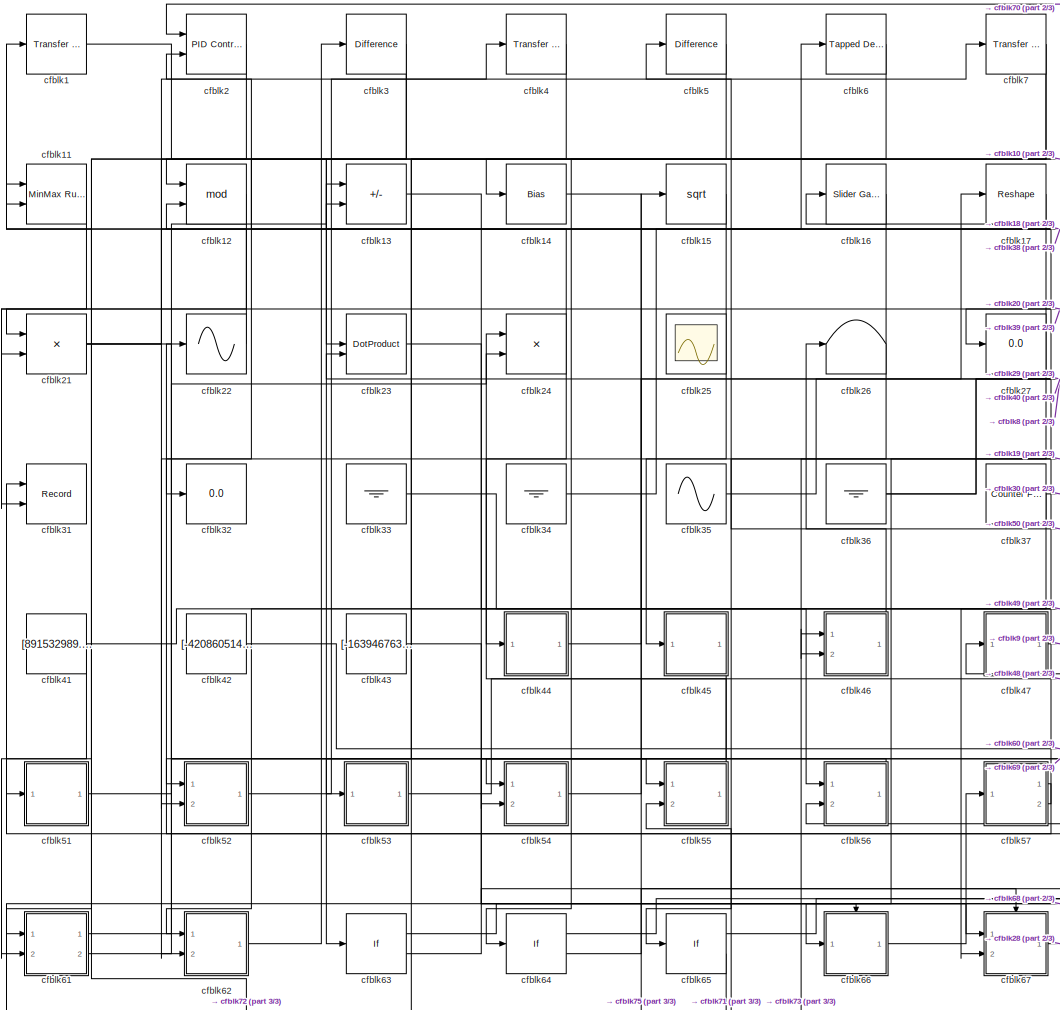
[diagram: root canvas - part 1/3, center side, full height]
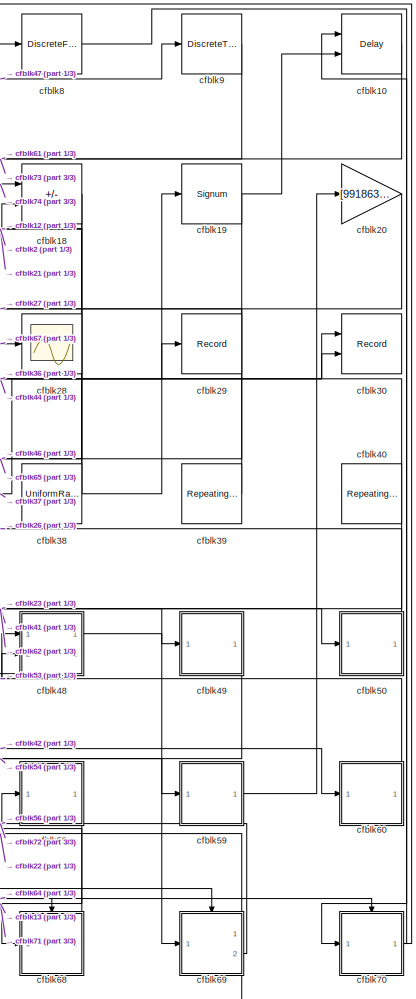
[diagram: root canvas - part 2/3, right side, full height]
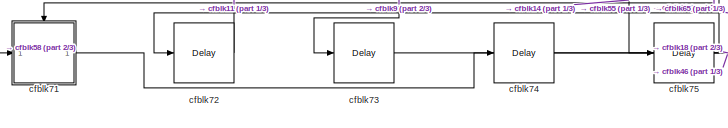
[diagram: root canvas - part 3/3, bottom left region]
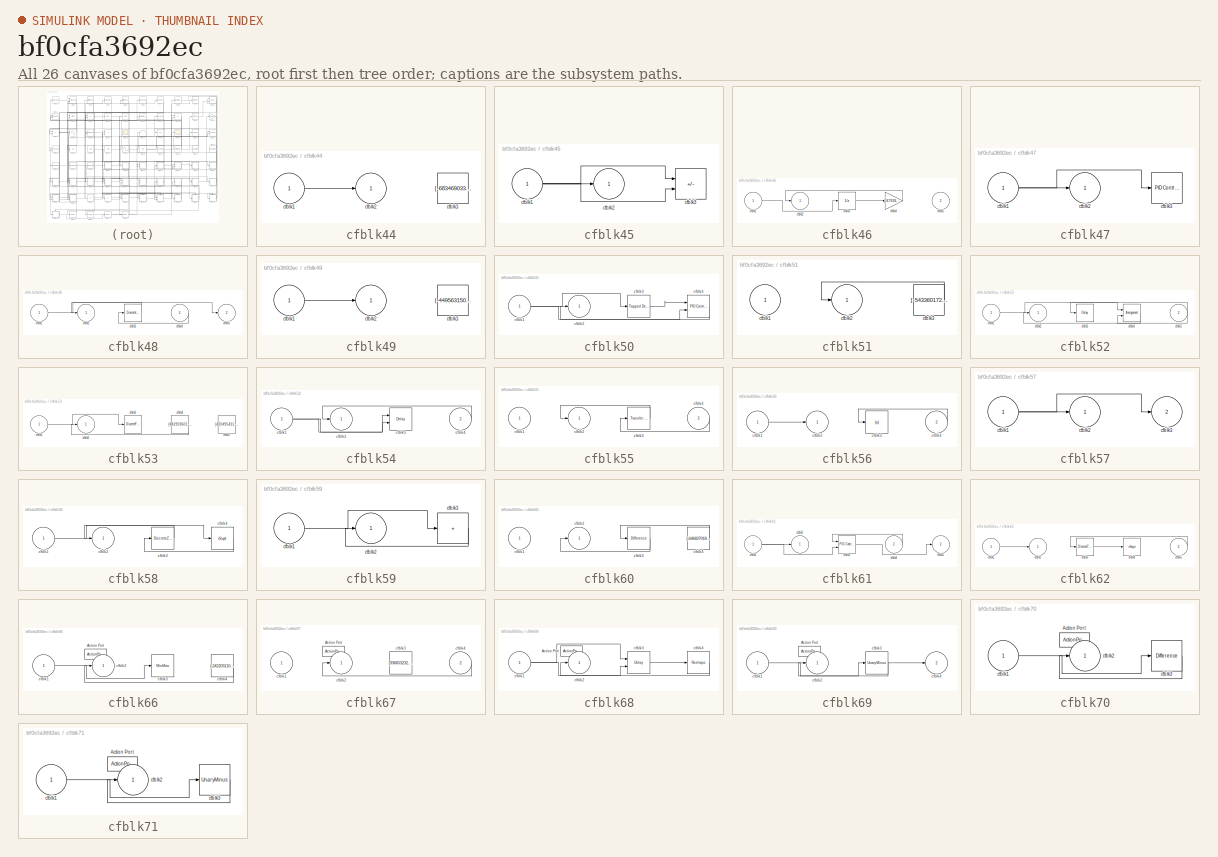
[diagram: thumbnail index - all 26 canvases of the model, root first then tree order]
MODEL slx_bf0cfa3692ec
KIND model
CONFIG AbsTol = auto
CONFIG EnableMultiTasking = off
CONFIG FixedStep = auto
CONFIG MaxStep = auto
CONFIG MinStep = auto
CONFIG RelTol = 1e-3
CONFIG SampleTimeConstraint = Unconstrained
CONFIG SolverName = VariableStepAuto
CONFIG StartTime = 0.0
CONFIG StopTime = 10.0
BLOCK [Reference] cfblk1  REF=simulink/Discrete/Transfer Fcn
Lead or Lag
  Ports = [1, 1]
  SourceBlock = simulink/Discrete/Transfer Fcn\nLead or Lag
  SourceProductBaseCode = SL
  SourceType = Lead or Lag Compensator
BLOCK [Delay] cfblk10
  DelayLengthSource = Input port
  InputPortMap = u0,p1
  Ports = [2, 1]
  SampleTime = 1
BLOCK [Reference] cfblk11  REF=simulink/Math
Operations/MinMax
Running
Resettable
  Ports = [2, 1]
  SourceBlock = simulink/Math\nOperations/MinMax\nRunning\nResettable
  SourceProductBaseCode = SL
  SourceType = MinMax Running Resettable
BLOCK [Math] cfblk12
  Operator = mod
  Ports = [2, 1]
BLOCK [Sum] cfblk13
  IconShape = rectangular
  Inputs = +-
  Ports = [2, 1]
BLOCK [Bias] cfblk14
  Bias = [572831672.233347]
  SaturateOnIntegerOverflow = off
BLOCK [Sqrt] cfblk15
BLOCK [Reference] cfblk16  REF=simulink/Math
Operations/Slider
Gain
  Ports = [1, 1]
  SourceBlock = simulink/Math\nOperations/Slider\nGain
  SourceProductBaseCode = SL
  SourceType = Slider Gain
BLOCK [Reshape] cfblk17
  Ports = [1, 1]
BLOCK [Sum] cfblk18
  IconShape = rectangular
  Inputs = +-
  Ports = [2, 1]
BLOCK [Signum] cfblk19
BLOCK [Reference] cfblk2  REF=slpidlib/PID Controller (2DOF)
  Ports = [2, 1]
  SourceBlock = slpidlib/PID Controller (2DOF)
  SourceProductBaseCode = SL
  SourceType = PID 2dof
BLOCK [Gain] cfblk20
  Gain = [991863440.169261]
BLOCK [Product] cfblk21
  Ports = [2, 1]
BLOCK [Sin] cfblk22
  Ports = [1, 1]
  SampleTime = 0
  TimeSource = Use external signal
BLOCK [DotProduct] cfblk23
  OutDataTypeStr = Inherit: Inherit via internal rule
BLOCK [Product] cfblk24
  Ports = [2, 1]
BLOCK [Scope] cfblk25
  Floating = on
  NumInputPorts = 1
  Ports = []
BLOCK [Terminator] cfblk26
BLOCK [Display] cfblk27
  Decimation = 1
  Ports = [1]
BLOCK [Scope] cfblk28
  Floating = off
  NumInputPorts = 1
  Ports = [1]
BLOCK [Record] cfblk29
  FileSettingsInternal = {"entries":[{"content":{"excelSettings":{"content":{},"type":"Streamout.ExcelSettings"}},"type":"Streamout.FileSettingStorage","uuid":"ba94f7bc-c571-4684-873e-198d343eb330"}],"packageUris":["http://schema.mathworks.com/mf0/streamout_blocks/R2020a"],"version":"1.0"}
  Ports = [1]
  SignalsInternal = {"entries":[{"content":{"signals":[{"content":{"blockPath":["sampleModel207/cfblk29"],"channel":[],"dimensions":[1],"domain":"sampleModel207/cfblk29","lineColor":"#0072bd","plots":[1],"port":1,"sid":[""],"signalID":7938,"signalName":"cfblk44"},"type":"RecordBlkView.Signal","uuid":"a03984d2-9a4a-4e1d-9b9e-9f81ae70439a"}]},"type":"RecordBlkView.InputSignals","uuid":"4d9cae81-2804-4434-b520-f1778a45d...<+97ch>
  VisualizationBindings = {"sparklinesplugin":{"info":[{"bindingParametersList":[],"subplotID":1}]}}
BLOCK [Reference] cfblk3  REF=simulink/Discrete/Difference
  Ports = [1, 1]
  SourceBlock = simulink/Discrete/Difference
  SourceProductBaseCode = SL
  SourceType = Difference
BLOCK [Record] cfblk30
  CompatibilityTag = XY
  FileSettingsInternal = {"entries":[{"content":{"excelSettings":{"content":{},"type":"Streamout.ExcelSettings"}},"type":"Streamout.FileSettingStorage","uuid":"02e6b58a-44ef-4f01-ae17-fed776587134"}],"packageUris":["http://schema.mathworks.com/mf0/streamout_blocks/R2020a"],"version":"1.0"}
  Layout = [1 1]
  Ports = [2]
  SignalsInternal = {"entries":[{"content":{"signals":[{"content":{"blockPath":["sampleModel207/cfblk30"],"channel":[],"dimensions":[1],"domain":"sampleModel207/cfblk30","lineColor":"#a2142f","plots":[1],"port":1,"sid":[""],"signalID":7944,"signalName":"cfblk37"},"type":"RecordBlkView.Signal","uuid":"f7eabd2b-9528-48de-bf59-b42dd2c527a0"},{"content":{"blockPath":["sampleModel207/cfblk30"],"channel":[],"dimensions":[1...<+383ch>
  VisualizationBindings = {"xyplotplugin":{"info":[{"series":[{"bindingParametersList":[{"parameter":"X-Axis","signalID":7944,"signalName":"cfblk37"},{"parameter":"Y-Axis","signalID":7956,"signalName":"cfblk36"}],"seriesID":54449}],"subplotID":1}]}}
BLOCK [Record] cfblk31
  CompatibilityTag = XY
  FileSettingsInternal = {"entries":[{"content":{"excelSettings":{"content":{},"type":"Streamout.ExcelSettings"}},"type":"Streamout.FileSettingStorage","uuid":"e6345b7f-2f4a-4e43-9378-549003ff2ab0"}],"packageUris":["http://schema.mathworks.com/mf0/streamout_blocks/R2020a"],"version":"1.0"}
  Layout = [1 1]
  Ports = [2]
  SignalsInternal = {"entries":[{"content":{"signals":[{"content":{"blockPath":["sampleModel207/cfblk31"],"channel":[],"dimensions":[1],"domain":"sampleModel207/cfblk31","lineColor":"#a2142f","plots":[1],"port":1,"sid":[""],"signalID":7948,"signalName":"cfblk57:1"},"type":"RecordBlkView.Signal","uuid":"d2f01f7a-bf83-4770-97ea-3c4744defc63"},{"content":{"blockPath":["sampleModel207/cfblk31"],"channel":[],"dimensions":...<+385ch>
  VisualizationBindings = {"xyplotplugin":{"info":[{"series":[{"bindingParametersList":[{"parameter":"X-Axis","signalID":7948,"signalName":"cfblk57:1"},{"parameter":"Y-Axis","signalID":7952,"signalName":"cfblk12"}],"seriesID":5543}],"subplotID":1}]}}
BLOCK [Display] cfblk32
  Decimation = 1
  Ports = [1]
BLOCK [Ground] cfblk33
BLOCK [Ground] cfblk34
BLOCK [Sin] cfblk35
  Amplitude = [-725514772.832782]
  Bias = [-219809830.978912]
  Ports = [0, 1]
  SampleTime = 0
BLOCK [Ground] cfblk36
BLOCK [Reference] cfblk37  REF=simulink/Sources/Counter
Free-Running
  Ports = [0, 1]
  SourceBlock = simulink/Sources/Counter\nFree-Running
  SourceProductBaseCode = SL
  SourceType = Counter Free-Running
BLOCK [UniformRandomNumber] cfblk38
  Maximum = [3449121833.114349]
  Minimum = [-7059416998.347307]
  SampleTime = 0.1
  Seed = [71620830.000000]
BLOCK [Reference] cfblk39  REF=simulink/Sources/Repeating
Sequence
Stair
  Ports = [0, 1]
  SourceBlock = simulink/Sources/Repeating\nSequence\nStair
  SourceProductBaseCode = SL
  SourceType = Repeating Sequence Stair
BLOCK [Reference] cfblk4  REF=simulink/Discrete/Transfer Fcn
First Order
  Ports = [1, 1]
  SourceBlock = simulink/Discrete/Transfer Fcn\nFirst Order
  SourceProductBaseCode = SL
  SourceType = First Order Transfer Fcn
BLOCK [Reference] cfblk40  REF=simulink/Sources/Repeating
Sequence
Interpolated
  Ports = [0, 1]
  SourceBlock = simulink/Sources/Repeating\nSequence\nInterpolated
  SourceProductBaseCode = SL
  SourceType = Repeating Sequence Interpolated
BLOCK [Constant] cfblk41
  SampleTime = 1
  Value = [891532989.581310]
BLOCK [Constant] cfblk42
  SampleTime = 1
  Value = [-420860514.653842]
BLOCK [Constant] cfblk43
  SampleTime = 1
  Value = [-163946763.960982]
BLOCK [SubSystem] cfblk44
  Ports = [1, 1]
  RequestExecContextInheritance = off
BLOCK [Inport] cfblk44/cfblk1
BLOCK [Outport] cfblk44/cfblk2
BLOCK [Constant] cfblk44/cfblk3
  SampleTime = 1
  Value = [-683469033.987010]
BLOCK [SubSystem] cfblk45
  Ports = [1, 1]
  RequestExecContextInheritance = off
BLOCK [Inport] cfblk45/cfblk1
BLOCK [Outport] cfblk45/cfblk2
BLOCK [Sum] cfblk45/cfblk3
  IconShape = rectangular
  Inputs = +-
  Ports = [2, 1]
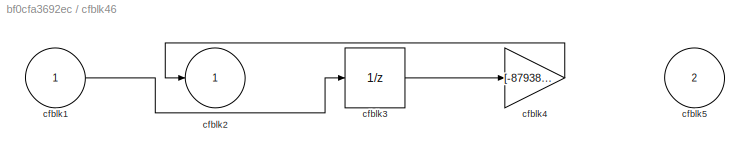
BLOCK [SubSystem] cfblk46
  Ports = [2, 1]
  RequestExecContextInheritance = off
BLOCK [Inport] cfblk46/cfblk1
BLOCK [Outport] cfblk46/cfblk2
BLOCK [UnitDelay] cfblk46/cfblk3
  HasFrameUpgradeWarning = on
BLOCK [Gain] cfblk46/cfblk4
  Gain = [-879380096.780010]
BLOCK [Inport] cfblk46/cfblk5
  Port = 2
BLOCK [SubSystem] cfblk47
  Ports = [1, 1]
  RequestExecContextInheritance = off
BLOCK [Inport] cfblk47/cfblk1
BLOCK [Outport] cfblk47/cfblk2
BLOCK [Reference] cfblk47/cfblk3  REF=slpidlib/PID Controller
  Ports = [1, 1]
  SourceBlock = slpidlib/PID Controller
  SourceProductBaseCode = SL
  SourceType = PID 1dof
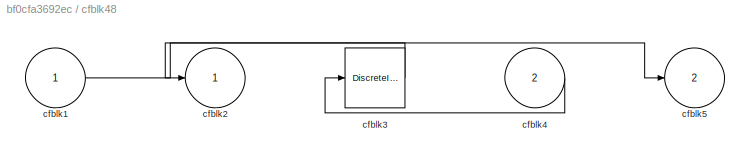
BLOCK [SubSystem] cfblk48
  Ports = [2, 2]
  RequestExecContextInheritance = off
BLOCK [Inport] cfblk48/cfblk1
BLOCK [Outport] cfblk48/cfblk2
BLOCK [DiscreteIntegrator] cfblk48/cfblk3
  ICPrevOutput = DiscIntNeverNeededParam
  ICPrevScaledInput = DiscIntNeverNeededParam
  InitialConditionSetting = Auto
  Ports = [1, 1]
BLOCK [Inport] cfblk48/cfblk4
  Port = 2
BLOCK [Outport] cfblk48/cfblk5
  Port = 2
BLOCK [SubSystem] cfblk49
  Ports = [1, 1]
  RequestExecContextInheritance = off
BLOCK [Inport] cfblk49/cfblk1
BLOCK [Outport] cfblk49/cfblk2
BLOCK [Constant] cfblk49/cfblk3
  SampleTime = 1
  Value = [-449563150.986198]
BLOCK [Reference] cfblk5  REF=simulink/Discrete/Difference
  Ports = [1, 1]
  SourceBlock = simulink/Discrete/Difference
  SourceProductBaseCode = SL
  SourceType = Difference
BLOCK [SubSystem] cfblk50
  Ports = [1, 1]
  RequestExecContextInheritance = off
BLOCK [Inport] cfblk50/cfblk1
BLOCK [Outport] cfblk50/cfblk2
BLOCK [Reference] cfblk50/cfblk3  REF=simulink/Discrete/Tapped Delay
  Ports = [1, 1]
  SourceBlock = simulink/Discrete/Tapped Delay
  SourceProductBaseCode = SL
  SourceType = Tapped Delay Line
BLOCK [Reference] cfblk50/cfblk4  REF=slpidlib/PID Controller (2DOF)
  Ports = [2, 1]
  SourceBlock = slpidlib/PID Controller (2DOF)
  SourceProductBaseCode = SL
  SourceType = PID 2dof
BLOCK [SubSystem] cfblk51
  Ports = [1, 1]
  RequestExecContextInheritance = off
BLOCK [Inport] cfblk51/cfblk1
BLOCK [Outport] cfblk51/cfblk2
BLOCK [Constant] cfblk51/cfblk3
  SampleTime = 1
  Value = [-543360172.892169]
BLOCK [SubSystem] cfblk52
  Ports = [2, 1]
  RequestExecContextInheritance = off
BLOCK [Inport] cfblk52/cfblk1
BLOCK [Outport] cfblk52/cfblk2
BLOCK [Delay] cfblk52/cfblk3
  InputPortMap = u0
  Ports = [1, 1]
  SampleTime = 1
BLOCK [Assignment] cfblk52/cfblk4
  DiagnosticForDimensions = Warning
  IndexOptions = Index vector (dialog)
  Indices = 1
  OutputSizes = 1
  Ports = [2, 1]
BLOCK [Inport] cfblk52/cfblk5
  Port = 2
BLOCK [SubSystem] cfblk53
  Ports = [1, 1]
  RequestExecContextInheritance = off
BLOCK [Inport] cfblk53/cfblk1
BLOCK [Outport] cfblk53/cfblk2
BLOCK [DiscreteFir] cfblk53/cfblk3
  InputPortMap = u0
  OutputPortMap = o0
  Ports = [1, 1]
  SampleTime = 1
BLOCK [Constant] cfblk53/cfblk4
  SampleTime = 1
  Value = [442959601.502982]
BLOCK [Constant] cfblk53/cfblk5
  SampleTime = 1
  Value = [420495431.017328]
BLOCK [SubSystem] cfblk54
  Ports = [2, 1]
  RequestExecContextInheritance = off
BLOCK [Inport] cfblk54/cfblk1
BLOCK [Outport] cfblk54/cfblk2
BLOCK [Delay] cfblk54/cfblk3
  DelayLengthSource = Input port
  InputPortMap = u0,p1
  Ports = [2, 1]
  SampleTime = 1
BLOCK [Inport] cfblk54/cfblk4
  Port = 2
BLOCK [SubSystem] cfblk55
  Ports = [2, 1]
  RequestExecContextInheritance = off
BLOCK [Inport] cfblk55/cfblk1
BLOCK [Outport] cfblk55/cfblk2
BLOCK [Reference] cfblk55/cfblk3  REF=simulink/Discrete/Transfer Fcn
Lead or Lag
  Ports = [1, 1]
  SourceBlock = simulink/Discrete/Transfer Fcn\nLead or Lag
  SourceProductBaseCode = SL
  SourceType = Lead or Lag Compensator
BLOCK [Inport] cfblk55/cfblk4
  Port = 2
BLOCK [SubSystem] cfblk56
  Ports = [2, 1]
  RequestExecContextInheritance = off
BLOCK [Inport] cfblk56/cfblk1
BLOCK [Outport] cfblk56/cfblk2
BLOCK [Abs] cfblk56/cfblk3
  SaturateOnIntegerOverflow = off
BLOCK [Inport] cfblk56/cfblk4
  Port = 2
BLOCK [SubSystem] cfblk57
  Ports = [1, 2]
  RequestExecContextInheritance = off
BLOCK [Inport] cfblk57/cfblk1
BLOCK [Outport] cfblk57/cfblk2
BLOCK [Outport] cfblk57/cfblk3
  Port = 2
BLOCK [SubSystem] cfblk58
  Ports = [1, 1]
  RequestExecContextInheritance = off
BLOCK [Inport] cfblk58/cfblk1
BLOCK [Outport] cfblk58/cfblk2
BLOCK [DiscreteZeroPole] cfblk58/cfblk3
  Gain = 1
  Poles = [0 0.5]
BLOCK [Sqrt] cfblk58/cfblk4
  AlgorithmType = Newton-Raphson
  Operator = rSqrt
BLOCK [SubSystem] cfblk59
  Ports = [1, 1]
  RequestExecContextInheritance = off
BLOCK [Inport] cfblk59/cfblk1
BLOCK [Outport] cfblk59/cfblk2
BLOCK [Sum] cfblk59/cfblk3
  IconShape = rectangular
  Inputs = +
  Ports = [1, 1]
BLOCK [Reference] cfblk6  REF=simulink/Discrete/Tapped Delay
  Ports = [1, 1]
  SourceBlock = simulink/Discrete/Tapped Delay
  SourceProductBaseCode = SL
  SourceType = Tapped Delay Line
BLOCK [SubSystem] cfblk60
  Ports = [1, 1]
  RequestExecContextInheritance = off
BLOCK [Inport] cfblk60/cfblk1
BLOCK [Outport] cfblk60/cfblk2
BLOCK [Reference] cfblk60/cfblk3  REF=simulink/Discrete/Difference
  Ports = [1, 1]
  SourceBlock = simulink/Discrete/Difference
  SourceProductBaseCode = SL
  SourceType = Difference
BLOCK [Constant] cfblk60/cfblk4
  SampleTime = 1
  Value = [-646837018.335124]
BLOCK [SubSystem] cfblk61
  Ports = [2, 2]
  RequestExecContextInheritance = off
BLOCK [Inport] cfblk61/cfblk1
BLOCK [Outport] cfblk61/cfblk2
BLOCK [Reference] cfblk61/cfblk3  REF=slpidlib/PID Controller (2DOF)
  Ports = [2, 1]
  SourceBlock = slpidlib/PID Controller (2DOF)
  SourceProductBaseCode = SL
  SourceType = PID 2dof
BLOCK [Inport] cfblk61/cfblk4
  Port = 2
BLOCK [Outport] cfblk61/cfblk5
  Port = 2
BLOCK [SubSystem] cfblk62
  Ports = [2, 1]
  RequestExecContextInheritance = off
BLOCK [Inport] cfblk62/cfblk1
BLOCK [Outport] cfblk62/cfblk2
BLOCK [DiscreteTransferFcn] cfblk62/cfblk3
  InputPortMap = u0
  Ports = [1, 1]
  SampleTime = 1
BLOCK [Sqrt] cfblk62/cfblk4
  AlgorithmType = Newton-Raphson
  Operator = rSqrt
BLOCK [Inport] cfblk62/cfblk5
  Port = 2
BLOCK [If] cfblk63
  IfExpression = u1 >= 0
  Ports = [1, 2]
  SampleTime = 1
BLOCK [If] cfblk64
  IfExpression = u1 >= 0
  Ports = [1, 2]
  SampleTime = 1
BLOCK [If] cfblk65
  IfExpression = u1 >= 0
  Ports = [1, 2]
  SampleTime = 1
BLOCK [SubSystem] cfblk66
  Ports = [1, 1, 0, 0, 0, 0, 0, 1]
  RequestExecContextInheritance = off
  TreatAsAtomicUnit = on
BLOCK [ActionPort] cfblk66/Action Port
  ActionPortLabel = if(u1 >= 0)
BLOCK [Inport] cfblk66/cfblk1
BLOCK [Outport] cfblk66/cfblk2
BLOCK [MinMax] cfblk66/cfblk3
  Ports = [1, 1]
BLOCK [Constant] cfblk66/cfblk4
  SampleTime = 1
  Value = [-242203110.533549]
BLOCK [SubSystem] cfblk67
  Ports = [2, 1, 0, 0, 0, 0, 0, 1]
  RequestExecContextInheritance = off
  TreatAsAtomicUnit = on
BLOCK [ActionPort] cfblk67/Action Port
  ActionPortLabel = else
BLOCK [Inport] cfblk67/cfblk1
BLOCK [Outport] cfblk67/cfblk2
BLOCK [Constant] cfblk67/cfblk3
  SampleTime = 1
  Value = [336653232.191756]
BLOCK [Inport] cfblk67/cfblk4
  Port = 2
BLOCK [SubSystem] cfblk68
  Ports = [1, 1, 0, 0, 0, 0, 0, 1]
  RequestExecContextInheritance = off
  TreatAsAtomicUnit = on
BLOCK [ActionPort] cfblk68/Action Port
  ActionPortLabel = if(u1 >= 0)
BLOCK [Inport] cfblk68/cfblk1
BLOCK [Outport] cfblk68/cfblk2
BLOCK [Delay] cfblk68/cfblk3
  InputPortMap = u0,e6
  Ports = [2, 1]
  ShowEnablePort = on
BLOCK [Reshape] cfblk68/cfblk4
  Ports = [1, 1]
BLOCK [SubSystem] cfblk69
  Ports = [1, 2, 0, 0, 0, 0, 0, 1]
  RequestExecContextInheritance = off
  TreatAsAtomicUnit = on
BLOCK [ActionPort] cfblk69/Action Port
  ActionPortLabel = else
BLOCK [Inport] cfblk69/cfblk1
BLOCK [Outport] cfblk69/cfblk2
BLOCK [UnaryMinus] cfblk69/cfblk3
BLOCK [Outport] cfblk69/cfblk4
  Port = 2
BLOCK [Reference] cfblk7  REF=simulink/Discrete/Transfer Fcn
Lead or Lag
  Ports = [1, 1]
  SourceBlock = simulink/Discrete/Transfer Fcn\nLead or Lag
  SourceProductBaseCode = SL
  SourceType = Lead or Lag Compensator
BLOCK [SubSystem] cfblk70
  Ports = [1, 1, 0, 0, 0, 0, 0, 1]
  RequestExecContextInheritance = off
  TreatAsAtomicUnit = on
BLOCK [ActionPort] cfblk70/Action Port
  ActionPortLabel = if(u1 >= 0)
BLOCK [Inport] cfblk70/cfblk1
BLOCK [Outport] cfblk70/cfblk2
BLOCK [Reference] cfblk70/cfblk3  REF=simulink/Discrete/Difference
  Ports = [1, 1]
  SourceBlock = simulink/Discrete/Difference
  SourceProductBaseCode = SL
  SourceType = Difference
BLOCK [SubSystem] cfblk71
  Ports = [1, 1, 0, 0, 0, 0, 0, 1]
  RequestExecContextInheritance = off
  TreatAsAtomicUnit = on
BLOCK [ActionPort] cfblk71/Action Port
  ActionPortLabel = else
BLOCK [Inport] cfblk71/cfblk1
BLOCK [Outport] cfblk71/cfblk2
BLOCK [UnaryMinus] cfblk71/cfblk3
BLOCK [Delay] cfblk72
  InputPortMap = u0
  Ports = [1, 1]
  SampleTime = 1
BLOCK [Delay] cfblk73
  InputPortMap = u0
  Ports = [1, 1]
  SampleTime = 1
BLOCK [Delay] cfblk74
  InputPortMap = u0
  Ports = [1, 1]
  SampleTime = 1
BLOCK [Delay] cfblk75
  InputPortMap = u0
  Ports = [1, 1]
  SampleTime = 1
BLOCK [DiscreteFir] cfblk8
  InputPortMap = u0
  OutputPortMap = o0
  Ports = [1, 1]
  SampleTime = 1
BLOCK [DiscreteTransferFcn] cfblk9
  InputPortMap = u0
  Ports = [1, 1]
  SampleTime = 1
LINE cfblk10:1 -> cfblk61:1
LINE cfblk11:1 -> cfblk21:2
LINE cfblk12:1 -> cfblk31:2
LINE cfblk13:1 -> cfblk68:1
LINE cfblk14:1 -> cfblk75:1
LINE cfblk15:1 -> cfblk45:1
LINE cfblk16:1 -> cfblk44:1
LINE cfblk17:1 -> cfblk66:1
NET cfblk18:1 -> cfblk13:2, cfblk46:2
NET cfblk19:1 -> cfblk10:2, cfblk65:1
LINE cfblk1:1 -> cfblk23:1
LINE cfblk20:1 -> cfblk27:1
NET cfblk21:1 -> cfblk18:2, cfblk69:1, cfblk7:1
LINE cfblk22:1 -> cfblk1:1
LINE cfblk23:1 -> cfblk50:1
NET cfblk24:1 -> cfblk11:1, cfblk62:2
LINE cfblk2:1 -> cfblk51:1
LINE cfblk33:1 -> cfblk56:1
LINE cfblk34:1 -> cfblk6:1
LINE cfblk35:1 -> cfblk17:1
NET cfblk36:1 -> cfblk30:2, cfblk8:1
NET cfblk37:1 -> cfblk30:1, cfblk67:2
NET cfblk38:1 -> cfblk12:2, cfblk19:1, cfblk2:2
LINE cfblk39:1 -> cfblk21:1
NET cfblk3:1 -> cfblk12:1, cfblk52:2
NET cfblk40:1 -> cfblk23:2, cfblk62:1
NET cfblk41:1 -> cfblk49:1, cfblk61:2
LINE cfblk42:1 -> cfblk60:1
LINE cfblk43:1 -> cfblk67:1
LINE cfblk44/cfblk1:1 -> cfblk44/cfblk2:1
LINE cfblk44:1 -> cfblk29:1
NET cfblk45/cfblk1:1 -> cfblk45/cfblk2:1, cfblk45/cfblk3:1, cfblk45/cfblk3:2
LINE cfblk45:1 -> cfblk64:1
LINE cfblk46/cfblk1:1 -> cfblk46/cfblk3:1
LINE cfblk46/cfblk3:1 -> cfblk46/cfblk4:1
LINE cfblk46/cfblk4:1 -> cfblk46/cfblk2:1
LINE cfblk46:1 -> cfblk5:1
NET cfblk47/cfblk1:1 -> cfblk47/cfblk2:1, cfblk47/cfblk3:1
LINE cfblk47:1 -> cfblk9:1
LINE cfblk48/cfblk1:1 -> cfblk48/cfblk5:1
LINE cfblk48/cfblk3:1 -> cfblk48/cfblk2:1
LINE cfblk48/cfblk4:1 -> cfblk48/cfblk3:1
LINE cfblk48:1 -> cfblk59:1
LINE cfblk48:2 -> cfblk47:1
LINE cfblk49/cfblk1:1 -> cfblk49/cfblk2:1
LINE cfblk49:1 -> cfblk54:2
LINE cfblk4:1 -> cfblk63:1
NET cfblk50/cfblk1:1 -> cfblk50/cfblk3:1, cfblk50/cfblk4:2
LINE cfblk50/cfblk3:1 -> cfblk50/cfblk4:1
LINE cfblk50/cfblk4:1 -> cfblk50/cfblk2:1
LINE cfblk50:1 -> cfblk26:1
LINE cfblk51/cfblk3:1 -> cfblk51/cfblk2:1
LINE cfblk51:1 -> cfblk55:1
LINE cfblk52/cfblk1:1 -> cfblk52/cfblk4:1
LINE cfblk52/cfblk4:1 -> cfblk52/cfblk2:1
NET cfblk52/cfblk5:1 -> cfblk52/cfblk3:1, cfblk52/cfblk4:2
LINE cfblk52:1 -> cfblk4:1
LINE cfblk53/cfblk1:1 -> cfblk53/cfblk3:1
LINE cfblk53/cfblk4:1 -> cfblk53/cfblk2:1
LINE cfblk53:1 -> cfblk48:2
NET cfblk54/cfblk1:1 -> cfblk54/cfblk3:1, cfblk54/cfblk3:2
LINE cfblk54/cfblk4:1 -> cfblk54/cfblk2:1
LINE cfblk54:1 -> cfblk15:1
LINE cfblk55/cfblk3:1 -> cfblk55/cfblk2:1
LINE cfblk55/cfblk4:1 -> cfblk55/cfblk3:1
LINE cfblk55:1 -> cfblk24:1
LINE cfblk56/cfblk1:1 -> cfblk56/cfblk2:1
LINE cfblk56/cfblk4:1 -> cfblk56/cfblk3:1
LINE cfblk56:1 -> cfblk52:1
NET cfblk57/cfblk1:1 -> cfblk57/cfblk2:1, cfblk57/cfblk3:1
LINE cfblk57:1 -> cfblk31:1
LINE cfblk57:2 -> cfblk16:1
LINE cfblk58/cfblk1:1 -> cfblk58/cfblk4:1
LINE cfblk58/cfblk3:1 -> cfblk58/cfblk2:1
LINE cfblk58/cfblk4:1 -> cfblk58/cfblk3:1
LINE cfblk58:1 -> cfblk71:1
LINE cfblk59/cfblk1:1 -> cfblk59/cfblk3:1
LINE cfblk59/cfblk3:1 -> cfblk59/cfblk2:1
LINE cfblk59:1 -> cfblk20:1
LINE cfblk5:1 -> cfblk53:1
LINE cfblk60/cfblk3:1 -> cfblk60/cfblk2:1
LINE cfblk60/cfblk4:1 -> cfblk60/cfblk3:1
LINE cfblk60:1 -> cfblk48:1
NET cfblk61/cfblk1:1 -> cfblk61/cfblk2:1, cfblk61/cfblk3:2
LINE cfblk61/cfblk3:1 -> cfblk61/cfblk5:1
LINE cfblk61/cfblk4:1 -> cfblk61/cfblk3:1
LINE cfblk61:1 -> cfblk24:2
LINE cfblk61:2 -> cfblk13:1
LINE cfblk62/cfblk1:1 -> cfblk62/cfblk2:1
LINE cfblk62/cfblk3:1 -> cfblk62/cfblk4:1
LINE cfblk62/cfblk5:1 -> cfblk62/cfblk3:1
LINE cfblk62:1 -> cfblk3:1
LINE cfblk63:1 -> cfblk66:ifaction
LINE cfblk63:2 -> cfblk67:ifaction
LINE cfblk64:1 -> cfblk68:ifaction
LINE cfblk64:2 -> cfblk69:ifaction
LINE cfblk65:1 -> cfblk70:ifaction
LINE cfblk65:2 -> cfblk71:ifaction
LINE cfblk66/cfblk1:1 -> cfblk66/cfblk3:1
LINE cfblk66/cfblk4:1 -> cfblk66/cfblk2:1
LINE cfblk66:1 -> cfblk57:1
LINE cfblk67/cfblk4:1 -> cfblk67/cfblk2:1
LINE cfblk67:1 -> cfblk28:1
NET cfblk68/cfblk1:1 -> cfblk68/cfblk3:1, cfblk68/cfblk3:2
LINE cfblk68/cfblk3:1 -> cfblk68/cfblk4:1
LINE cfblk68/cfblk4:1 -> cfblk68/cfblk2:1
LINE cfblk68:1 -> cfblk58:1
LINE cfblk69/cfblk1:1 -> cfblk69/cfblk3:1
NET cfblk69/cfblk3:1 -> cfblk69/cfblk2:1, cfblk69/cfblk4:1
LINE cfblk69:1 -> cfblk22:1
NET cfblk69:2 -> cfblk56:2, cfblk72:1
LINE cfblk6:1 -> cfblk54:1
LINE cfblk70/cfblk1:1 -> cfblk70/cfblk3:1
LINE cfblk70/cfblk3:1 -> cfblk70/cfblk2:1
NET cfblk70:1 -> cfblk10:1, cfblk2:1
LINE cfblk71/cfblk1:1 -> cfblk71/cfblk3:1
LINE cfblk71/cfblk3:1 -> cfblk71/cfblk2:1
LINE cfblk71:1 -> cfblk74:1
LINE cfblk72:1 -> cfblk11:2
LINE cfblk73:1 -> cfblk46:1
LINE cfblk74:1 -> cfblk18:1
LINE cfblk75:1 -> cfblk55:2
NET cfblk7:1 -> cfblk14:1, cfblk32:1
LINE cfblk8:1 -> cfblk70:1
LINE cfblk9:1 -> cfblk73:1
note: NET lines group one-source signal fan-out (src -> all destinations, sorted); 1:1 wires keep LINE
